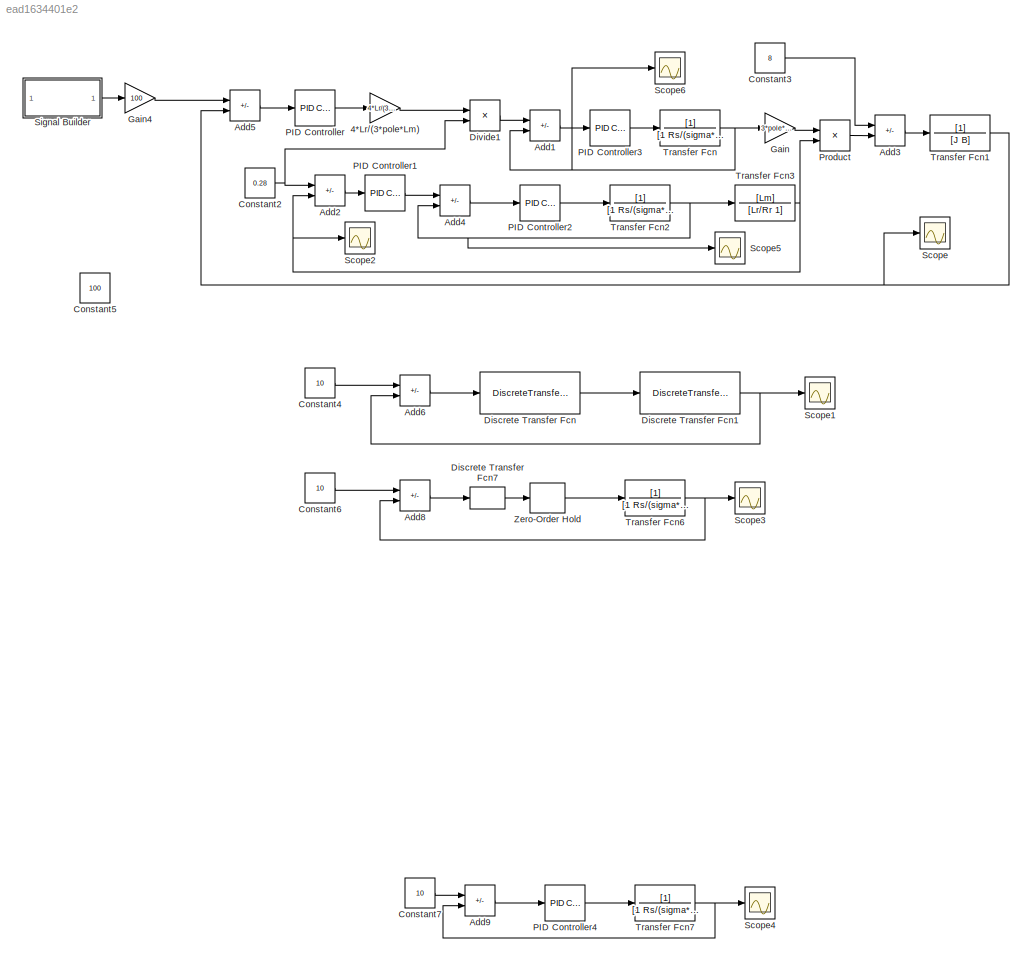
MODEL slx_ead1634401e2
KIND model
CONFIG AbsTol = auto
CONFIG EnableMultiTasking = off
CONFIG FixedStep = 0.001
CONFIG MaxStep = auto
CONFIG MinStep = auto
CONFIG RelTol = 1e-3
CONFIG SampleTimeConstraint = Unconstrained
CONFIG SolverName = VariableStepAuto
CONFIG StartTime = 0.0
CONFIG StopTime = 1
BLOCK [Gain] 4*Lr//(3*pole*Lm)
  Gain = 4*Lr/(3*pole*Lm)
BLOCK [Sum] Add1
  IconShape = rectangular
  Inputs = +-
BLOCK [Sum] Add2
  IconShape = rectangular
  Inputs = +-
BLOCK [Sum] Add3
  IconShape = rectangular
  Inputs = -+
BLOCK [Sum] Add4
  IconShape = rectangular
  Inputs = +-
BLOCK [Sum] Add5
  IconShape = rectangular
  Inputs = +-
BLOCK [Sum] Add6
  IconShape = rectangular
  Inputs = +-
BLOCK [Sum] Add8
  IconShape = rectangular
  Inputs = +-
BLOCK [Sum] Add9
  IconShape = rectangular
  Inputs = +-
BLOCK [Constant] Constant2
  Value = 0.28
BLOCK [Constant] Constant3
  Value = 8
BLOCK [Constant] Constant4
  Value = 10
BLOCK [Constant] Constant5
  Value = 100
BLOCK [Constant] Constant6
  Value = 10
BLOCK [Constant] Constant7
  Value = 10
BLOCK [DiscreteTransferFcn] Discrete Transfer Fcn
  Denominator = [1 -1]
  InputPortMap = u0
  Numerator = [100 -99.9]
  SampleTime = 0.00001
BLOCK [DiscreteTransferFcn] Discrete Transfer Fcn1
  Denominator = [1 -0.99880752]
  InputPortMap = u0
  Numerator = [4.99701881e-06 4.99701881e-06]
  SampleTime = 0.00001
BLOCK [DiscreteTransferFcn] Discrete Transfer Fcn7
  Denominator = [1 -1]
  InputPortMap = u0
  Numerator = [105.95 -94.05]
  SampleTime = 0.001
BLOCK [Product] Divide1
  Inputs = */
BLOCK [Gain] Gain
  Gain = 3*pole*Lm/(4*Lr)
BLOCK [Gain] Gain4
  Gain = 100
BLOCK [Reference] PID Controller  REF=slpidlib/PID Controller
  LibrarySourceBlock = simulink/Continuous/PID Controller
  SourceBlock = slpidlib/PID Controller
  SourceType = PID 1dof
BLOCK [Reference] PID Controller1  REF=slpidlib/PID Controller
  LibrarySourceBlock = simulink/Continuous/PID Controller
  SourceBlock = slpidlib/PID Controller
  SourceType = PID 1dof
BLOCK [Reference] PID Controller2  REF=slpidlib/PID Controller
  LibrarySourceBlock = simulink/Continuous/PID Controller
  SourceBlock = slpidlib/PID Controller
  SourceType = PID 1dof
BLOCK [Reference] PID Controller3  REF=slpidlib/PID Controller
  LibrarySourceBlock = simulink/Continuous/PID Controller
  SourceBlock = slpidlib/PID Controller
  SourceType = PID 1dof
BLOCK [Reference] PID Controller4  REF=slpidlib/PID Controller
  LibrarySourceBlock = simulink/Continuous/PID Controller
  SourceBlock = slpidlib/PID Controller
  SourceType = PID 1dof
BLOCK [Product] Product
BLOCK [Scope] Scope
  Floating = off
  NumInputPorts = 1
  ScopeSpecificationString = Simulink.scopes.TimeScopeBlockCfg('CurrentConfiguration', extmgr.ConfigurationSet(extmgr.Configuration('Core','General UI',true),extmgr.Configuration('Core','Source UI',true),extmgr.Configuration('Sources','WiredSimulink',true),extmgr.Configuration('Visuals','Time Domain',true,'SerializedDisplays',{struct('MinYLimReal','-17.69999','MaxYLimReal','113.14317','YLabelReal','','MinYLimMag','0.00000','M...<+1343ch>
BLOCK [Scope] Scope1
  Floating = off
  NumInputPorts = 1
  ScopeSpecificationString = Simulink.scopes.TimeScopeBlockCfg('CurrentConfiguration', extmgr.ConfigurationSet(extmgr.Configuration('Core','General UI',true),extmgr.Configuration('Core','Source UI',true),extmgr.Configuration('Sources','WiredSimulink',true,'DataLoggingVariableName','ScopeData1'),extmgr.Configuration('Visuals','Time Domain',true,'SerializedDisplays',{struct('MinYLimReal','-1.24438','MaxYLimReal','11.24938','YLa...<+1385ch>
BLOCK [Scope] Scope2
  Floating = off
  NumInputPorts = 1
  ScopeSpecificationString = Simulink.scopes.TimeScopeBlockCfg('CurrentConfiguration', extmgr.ConfigurationSet(extmgr.Configuration('Core','General UI',true),extmgr.Configuration('Core','Source UI',true),extmgr.Configuration('Sources','WiredSimulink',true,'DataLoggingVariableName','ScopeData3'),extmgr.Configuration('Visuals','Time Domain',true,'SerializedDisplays',{struct('MinYLimReal','-0.03491','MaxYLimReal','0.31415','YLab...<+1372ch>
BLOCK [Scope] Scope3
  Floating = off
  NumInputPorts = 1
  ScopeSpecificationString = Simulink.scopes.TimeScopeBlockCfg('CurrentConfiguration', extmgr.ConfigurationSet(extmgr.Configuration('Core','General UI',true),extmgr.Configuration('Core','Source UI',true),extmgr.Configuration('Sources','WiredSimulink',true,'DataLoggingVariableName','ScopeData1'),extmgr.Configuration('Visuals','Time Domain',true,'SerializedDisplays',{struct('MinYLimReal','9.71592','MaxYLimReal','9.79335','YLabe...<+1389ch>
BLOCK [Scope] Scope4
  Floating = off
  NumInputPorts = 1
  ScopeSpecificationString = Simulink.scopes.TimeScopeBlockCfg('CurrentConfiguration', extmgr.ConfigurationSet(extmgr.Configuration('Core','General UI',true),extmgr.Configuration('Core','Source UI',true),extmgr.Configuration('Sources','WiredSimulink',true,'DataLoggingVariableName','ScopeData2'),extmgr.Configuration('Visuals','Time Domain',true,'SerializedDisplays',{struct('MinYLimReal','-1.68781','MaxYLimReal','15.19027','YLa...<+1376ch>
BLOCK [Scope] Scope5
  Floating = off
  NumInputPorts = 1
  ScopeSpecificationString = Simulink.scopes.TimeScopeBlockCfg('CurrentConfiguration', extmgr.ConfigurationSet(extmgr.Configuration('Core','General UI',true),extmgr.Configuration('Core','Source UI',true),extmgr.Configuration('Sources','WiredSimulink',true,'DataLoggingVariableName','ScopeData4'),extmgr.Configuration('Visuals','Time Domain',true,'SerializedDisplays',{struct('MinYLimReal','-0.42837','MaxYLimReal','3.85535','YLab...<+1372ch>
BLOCK [Scope] Scope6
  Floating = off
  NumInputPorts = 1
  ScopeSpecificationString = Simulink.scopes.TimeScopeBlockCfg('CurrentConfiguration', extmgr.ConfigurationSet(extmgr.Configuration('Core','General UI',true),extmgr.Configuration('Core','Source UI',true),extmgr.Configuration('Sources','WiredSimulink',true,'DataLoggingVariableName','ScopeData1'),extmgr.Configuration('Visuals','Time Domain',true,'SerializedDisplays',{struct('MinYLimReal','-15.00251','MaxYLimReal','135.02263','Y...<+1381ch>
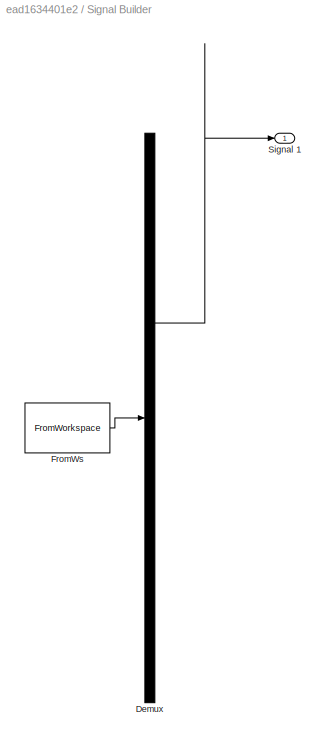
BLOCK [SubSystem] Signal Builder
  ClipboardFcn = sigbuilder_block('clipboard');
  CloseFcn = sigbuilder_block('close');
  ContinueFcn = sigbuilder_block('continue');
  CopyFcn = sigbuilder_block('copy');
  DeleteFcn = sigbuilder_block('delete');
  LoadFcn = sigbuilder_block('load');
  MaskHideContents = on
  ModelCloseFcn = sigbuilder_block('modelClose');
  NameChangeFcn = sigbuilder_block('namechange');
  OpenFcn = sigbuilder_block('open',[437.6 199.2 550.4 400 ]);
  PauseFcn = sigbuilder_block('pause');
  PreSaveFcn = sigbuilder_block('preSave');
  StartFcn = sigbuilder_block('start');
  StopFcn = sigbuilder_block('stop');
  Tag = STV Subsys
BLOCK [Demux] Signal Builder/Demux
  DisplayOption = none
  Outputs = 1
  Tag = STV Demux
BLOCK [FromWorkspace] Signal Builder/FromWs
  Tag = STV FromWs
  VariableName = tuvar
BLOCK [Outport] Signal Builder/Signal 1
  Tag = STV Outport
BLOCK [TransferFcn] Transfer Fcn
  Denominator = [1 Rs/(sigma*Ls)]
BLOCK [TransferFcn] Transfer Fcn1
  Denominator = [J B]
BLOCK [TransferFcn] Transfer Fcn2
  Denominator = [1 Rs/(sigma*Ls)-(1-sigma)/(sigma*Tr)]
BLOCK [TransferFcn] Transfer Fcn3
  Denominator = [Lr/Rr 1]
  Numerator = [Lm]
BLOCK [TransferFcn] Transfer Fcn6
  Denominator = [1 Rs/(sigma*Ls)]
BLOCK [TransferFcn] Transfer Fcn7
  Denominator = [1 Rs/(sigma*Ls)-(1-sigma)/(sigma*Tr)]
BLOCK [ZeroOrderHold] Zero-Order Hold
  SampleTime = -1
LINE 4*Lr//(3*pole*Lm):1 -> Divide1:1
LINE Add1:1 -> PID Controller3:1
LINE Add2:1 -> PID Controller1:1
LINE Add3:1 -> Transfer Fcn1:1
LINE Add4:1 -> PID Controller2:1
LINE Add5:1 -> PID Controller:1
LINE Add6:1 -> Discrete Transfer Fcn:1
LINE Add8:1 -> Discrete Transfer Fcn7:1
LINE Add9:1 -> PID Controller4:1
NET Constant2:1 -> Add2:1, Divide1:2
LINE Constant3:1 -> Add3:1
LINE Constant4:1 -> Add6:1
LINE Constant6:1 -> Add8:1
LINE Constant7:1 -> Add9:1
NET Discrete Transfer Fcn1:1 -> Add6:2, Scope1:1
LINE Discrete Transfer Fcn7:1 -> Zero-Order Hold:1
LINE Discrete Transfer Fcn:1 -> Discrete Transfer Fcn1:1
LINE Divide1:1 -> Add1:1
LINE Gain4:1 -> Add5:1
LINE Gain:1 -> Product:1
LINE PID Controller1:1 -> Add4:1
LINE PID Controller2:1 -> Transfer Fcn2:1
LINE PID Controller3:1 -> Transfer Fcn:1
LINE PID Controller4:1 -> Transfer Fcn7:1
LINE PID Controller:1 -> 4*Lr//(3*pole*Lm):1
LINE Product:1 -> Add3:2
LINE Signal Builder:1 -> Gain4:1
NET Transfer Fcn1:1 -> Add5:2, Scope:1
NET Transfer Fcn2:1 -> Add4:2, Scope5:1, Transfer Fcn3:1
NET Transfer Fcn3:1 -> Add2:2, Product:2, Scope2:1
NET Transfer Fcn6:1 -> Add8:2, Scope3:1
NET Transfer Fcn7:1 -> Add9:2, Scope4:1
NET Transfer Fcn:1 -> Add1:2, Gain:1, Scope6:1
LINE Zero-Order Hold:1 -> Transfer Fcn6:1
note: NET lines group one-source signal fan-out (src -> all destinations, sorted); 1:1 wires keep LINE
